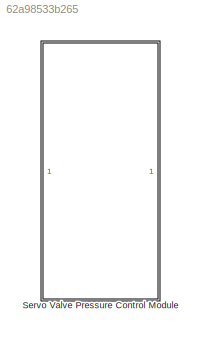
MODEL slx_62a98533b265
KIND library
CONFIG AbsTol = auto
CONFIG EnableMultiTasking = off
CONFIG FixedStep = auto
CONFIG MaxStep = auto
CONFIG MinStep = auto
CONFIG RelTol = 1e-3
CONFIG SampleTimeConstraint = Unconstrained
CONFIG SolverName = VariableStepAuto
CONFIG StartTime = 0.0
CONFIG StopTime = 10.0
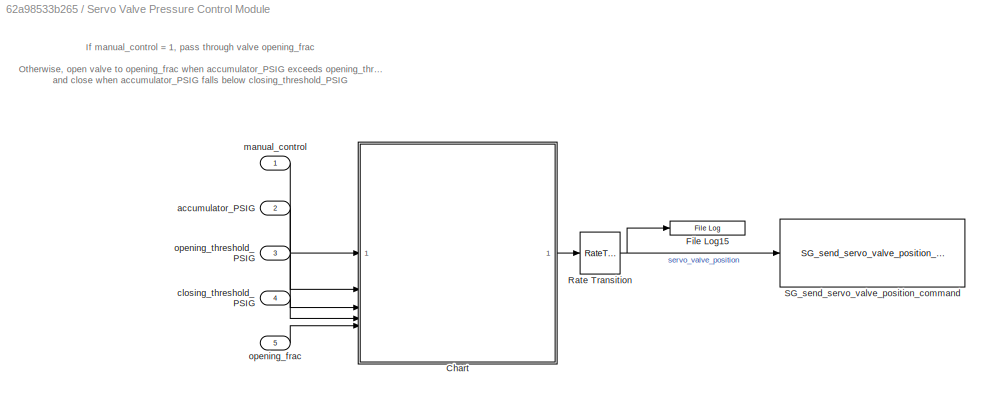
BLOCK [SubSystem] Servo Valve Pressure Control Module
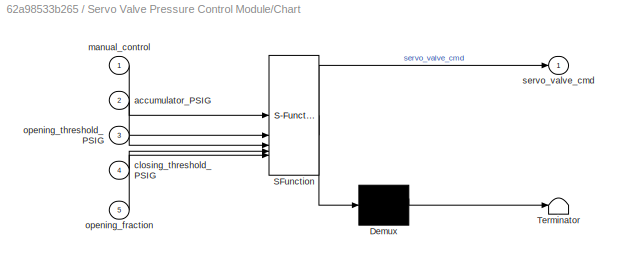
BLOCK [SubSystem] Servo Valve Pressure Control Module/Chart
  ErrorFcn = Stateflow.Translate.translate
  PermitHierarchicalResolution = ExplicitOnly
  SFBlockType = Chart
  TreatAsAtomicUnit = on
BLOCK [Demux] Servo Valve Pressure Control Module/Chart/ Demux 
  Outputs = 1
BLOCK [S-Function] Servo Valve Pressure Control Module/Chart/ SFunction 
  EnableBusSupport = off
  FunctionName = sf_sfun
  PortCounts = [5 2]
  SFcnIsStateOwnerBlock = off
  SFunctionDeploymentMode = off
  Tag = Stateflow S-Function 6
BLOCK [Terminator] Servo Valve Pressure Control Module/Chart/ Terminator 
BLOCK [Inport] Servo Valve Pressure Control Module/Chart/accumulator_PSIG
  Port = 2
BLOCK [Inport] Servo Valve Pressure Control Module/Chart/closing_threshold_PSIG
  Port = 4
BLOCK [Inport] Servo Valve Pressure Control Module/Chart/manual_control
BLOCK [Inport] Servo Valve Pressure Control Module/Chart/opening_fraction
  Port = 5
BLOCK [Inport] Servo Valve Pressure Control Module/Chart/opening_threshold_PSIG
  Port = 3
BLOCK [Outport] Servo Valve Pressure Control Module/Chart/servo_valve_cmd
BLOCK [Reference] Servo Valve Pressure Control Module/File Log15  REF=slrealtimeloglib/File Log
  SourceBlock = slrealtimeloglib/File Log
  SourceType = slrealtimeloggingblock
BLOCK [RateTransition] Servo Valve Pressure Control Module/Rate Transition
  OutPortSampleTime = 0.01
BLOCK [Reference] Servo Valve Pressure Control Module/SG_send_servo_valve_position_command  REF=SG_send_servo_valve_position_command/SG_send_servo_valve_position_command
  SourceBlock = SG_send_servo_valve_position_command/SG_send_servo_valve_position_command
  SourceType = SubSystem
BLOCK [Inport] Servo Valve Pressure Control Module/accumulator_PSIG
  Port = 2
BLOCK [Inport] Servo Valve Pressure Control Module/closing_threshold_PSIG
  Port = 4
BLOCK [Inport] Servo Valve Pressure Control Module/manual_control
BLOCK [Inport] Servo Valve Pressure Control Module/opening_frac
  Port = 5
BLOCK [Inport] Servo Valve Pressure Control Module/opening_threshold_PSIG
  Port = 3
ANNOTATION Servo Valve Pressure Control Module: If manual_control = 1, pass through valve opening_frac Otherwise, open valve to opening_frac when accumulator_PSIG exceeds opening_threshold_PSIG and close when accumulator_PSIG falls below closing_threshold_PSIG
LINE Servo Valve Pressure Control Module/Chart:1 -> Servo Valve Pressure Control Module/Rate Transition:1
NET Servo Valve Pressure Control Module/Rate Transition:1 -> Servo Valve Pressure Control Module/File Log15:1, Servo Valve Pressure Control Module/SG_send_servo_valve_position_command:1
LINE Servo Valve Pressure Control Module/accumulator_PSIG:1 -> Servo Valve Pressure Control Module/Chart:2
LINE Servo Valve Pressure Control Module/closing_threshold_PSIG:1 -> Servo Valve Pressure Control Module/Chart:4
LINE Servo Valve Pressure Control Module/manual_control:1 -> Servo Valve Pressure Control Module/Chart:1
LINE Servo Valve Pressure Control Module/opening_frac:1 -> Servo Valve Pressure Control Module/Chart:5
LINE Servo Valve Pressure Control Module/opening_threshold_PSIG:1 -> Servo Valve Pressure Control Module/Chart:3
note: NET lines group one-source signal fan-out (src -> all destinations, sorted); 1:1 wires keep LINE
CHART Servo Valve Pressure Control Module/Chart states=5 transitions=9
  STATE_LABEL 'valve_init_1\nen:\n servo_valve_cmd = 0;'
  STATE_LABEL 'valve_init_2\nen:\n servo_valve_cmd = 0.1;'
  STATE_LABEL 'valve_closed\nen:\n servo_valve_cmd = 0;'
  STATE_LABEL 'manual_valve_control\nen, du:\n servo_valve_cmd = opening_fraction;'
  STATE_LABEL 'valve_opened\nen, du:\n servo_valve_cmd = opening_fraction;'
CHART  states=0 transitions=0
